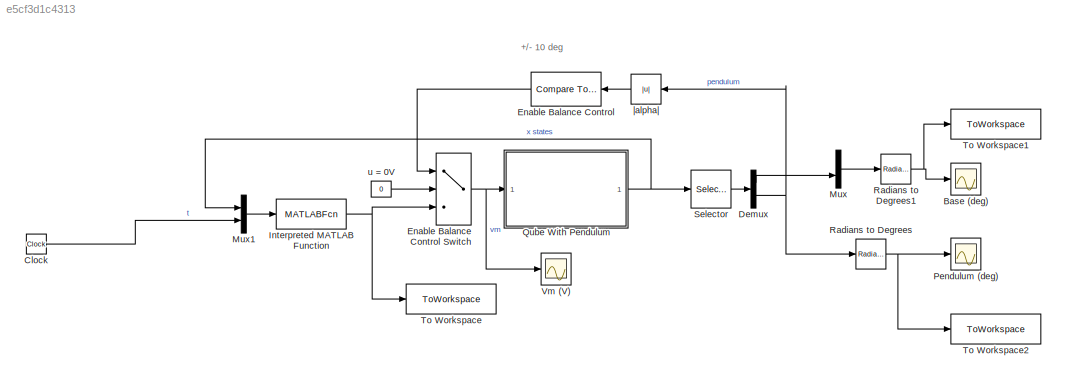
MODEL slx_e5cf3d1c4313
KIND model
CONFIG AbsTol = auto
CONFIG EnableMultiTasking = off
CONFIG FixedStep = 0.002
CONFIG MaxStep = auto
CONFIG MinStep = auto
CONFIG RelTol = 1e-3
CONFIG SampleTimeConstraint = Unconstrained
CONFIG SolverName = ode4
CONFIG StartTime = 0.0
CONFIG StopTime = inf
BLOCK [Scope] Base (deg)
  ActiveDisplayYMaximum = 168.75
  ActiveDisplayYMinimum = -168.75
  DataLoggingVariableName = ScopeData1
  Floating = off
  GraphicalSettings = {"Style":{"BackgroundColor":[0.12941176470588237,0.12941176470588237,0.12941176470588237],"AxesColor":[0.07058823529411765,0.07058823529411765,0.07058823529411765],"LabelsColor":[0.8509803921568627,0.8509803921568627,0.8509803921568627],"PreserveColors":false,"Visible":[true,true],"LineStyle":["-","-"],"LineWidth":[1.5,1.5],"BarWidth":[0.9,0.9],"LineColor":["auto","auto"],"LineFaceAlpha":[1,1],"Li...<+2100ch>
  MultipleDisplayCache = [{"MaxYLimMag":168.75,"MaxYLimReal":168.75,"MinYLimMag":0,"MinYLimReal":-168.75,"PlotAsMagnitudePhase":false,"ShowGrid":true,"ShowLegend":false,"Title":"%<SignalLabel>","YLabel":""}]
  NumInputPorts = 1
  ScopeFrameLocation = window
  WasSavedAsWebScope = on
  WindowPosition = [448.000000,304.000000,544.000000,292.000000,]
BLOCK [Clock] Clock
BLOCK [Demux] Demux
  Outputs = 2
BLOCK [Reference] Enable Balance Control  REF=simulink/Logic and Bit
Operations/Compare
To Constant
  SourceBlock = simulink/Logic and Bit\nOperations/Compare\nTo Constant
  SourceType = Compare To Constant
BLOCK [MultiPortSwitch] Enable Balance Control Switch
  DataPortOrder = Zero-based contiguous
  InputSameDT = off
  Inputs = 2
  SaturateOnIntegerOverflow = off
  zeroidx = on
BLOCK [MATLABFcn] Interpreted MATLAB Function
  MATLABFcn = mpc_controller
BLOCK [Mux] Mux
  DisplayOption = bar
  Inputs = 2
BLOCK [Mux] Mux1
  DisplayOption = bar
  Inputs = 2
BLOCK [Scope] Pendulum (deg)
  ActiveDisplayYMaximum = 294.12194355489
  ActiveDisplayYMinimum = -770.30363714423675
  DataLoggingVariableName = ScopeData2
  Floating = off
  GraphicalSettings = {"AxesScalingProperties":{"AlignXAxis":"Center","AlignYAxis":"Center","AutoScaleXAxisLimits":false,"AxesScaling":"Manual","AxesScalingNumUpdates":10,"ExpandOnly":true,"ScaleAxesLimitsAtStop":false,"XAxisDataRange":100,"YAxisDataRange":80},"Bilevel":{"AutoStateLevel":true,"Enabled":true,"HighStateLevel":2.3,"LowStateLevel":0,"LowerReferenceLevel":10,"MidReferenceLevel":50,"SettleSeek":0.02,"ShowAbe...<+2288ch>
  MultipleDisplayCache = [{"MaxYLimMag":202.82958984375,"MaxYLimReal":294.12194355489,"MinYLimMag":0,"MinYLimReal":-770.30363714423675,"PlotAsMagnitudePhase":false,"ShowGrid":true,"ShowLegend":false,"Title":"%<SignalLabel>","YLabel":""}]
  NumInputPorts = 1
  ScopeFrameLocation = window
  WasSavedAsWebScope = on
  WindowPosition = [530.000000,336.000000,547.000000,306.000000,]
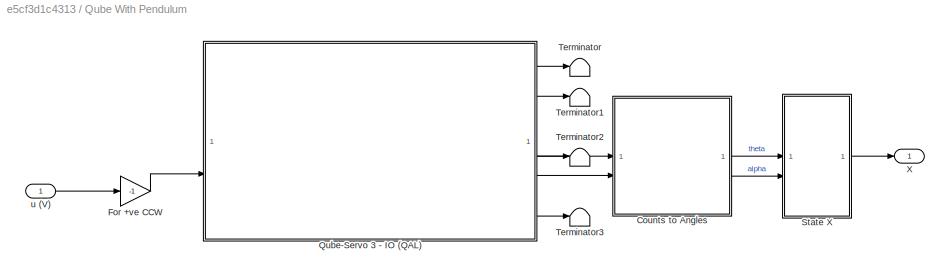
BLOCK [SubSystem] Qube With Pendulum
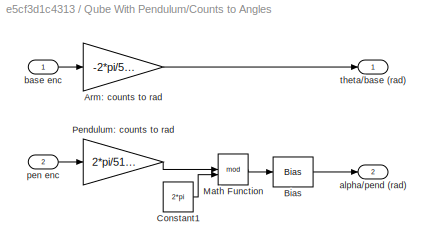
BLOCK [SubSystem] Qube With Pendulum/Counts to Angles
BLOCK [Gain] Qube With Pendulum/Counts to Angles/Arm: counts to rad
  Gain = -2*pi/512/4
BLOCK [Bias] Qube With Pendulum/Counts to Angles/Bias
  Bias = -pi
  SaturateOnIntegerOverflow = off
BLOCK [Constant] Qube With Pendulum/Counts to Angles/Constant1
  Value = 2*pi
BLOCK [Math] Qube With Pendulum/Counts to Angles/Math Function
  Operator = mod
  SignedPower = on
BLOCK [Gain] Qube With Pendulum/Counts to Angles/Pendulum: counts to rad
  Gain = 2*pi/512/4
BLOCK [Outport] Qube With Pendulum/Counts to Angles/alpha//pend (rad)
  Port = 2
  VectorParamsAs1DForOutWhenUnconnected = off
BLOCK [Inport] Qube With Pendulum/Counts to Angles/base enc
BLOCK [Inport] Qube With Pendulum/Counts to Angles/pen enc
  Port = 2
BLOCK [Outport] Qube With Pendulum/Counts to Angles/theta//base (rad)
  VectorParamsAs1DForOutWhenUnconnected = off
BLOCK [Gain] Qube With Pendulum/For +ve CCW
  Gain = -1
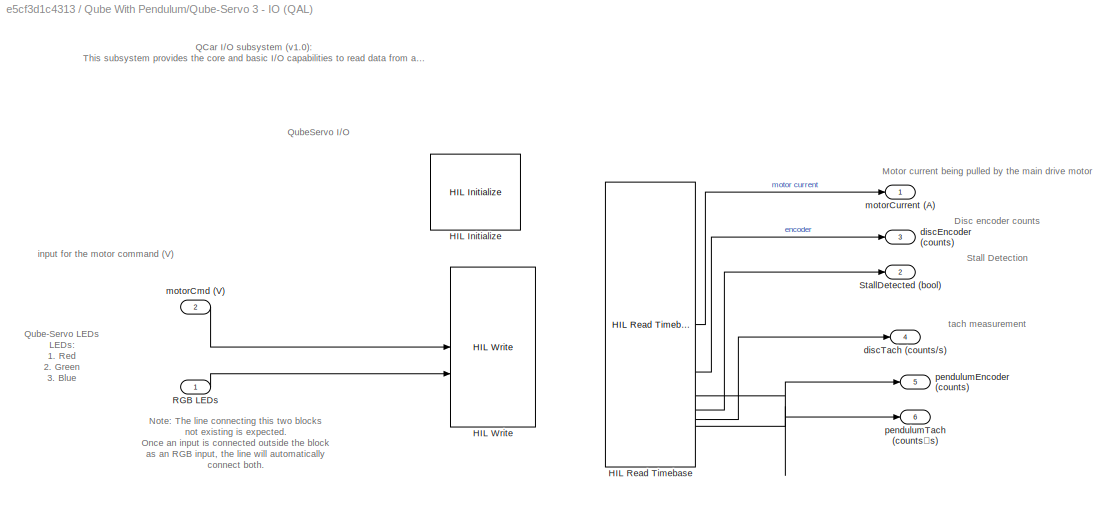
BLOCK [SubSystem] Qube With Pendulum/Qube-Servo 3 - IO (QAL)
  CopyFcn = set_param(gcbh,'LinkStatus','none');
  UserDataPersistent = on
BLOCK [Reference] Qube With Pendulum/Qube-Servo 3 - IO (QAL)/HIL Initialize  REF=quarc_library/Data Acquisition/Generic/Configuration/HIL Initialize
  AttributesFormatString = %<object_name> (%<board_type>-%<board_number>)
  SourceBlock = quarc_library/Data Acquisition/Generic/Configuration/HIL Initialize
  SourceProductName = QUARC Targets
  SourceType = HIL Initialize
  UserDataPersistent = on
BLOCK [Reference] Qube With Pendulum/Qube-Servo 3 - IO (QAL)/HIL Read Timebase  REF=quarc_library/Data Acquisition/Generic/Timebases/HIL Read
Timebase
  AttributesFormatString = (%<object_name>)
  SourceBlock = quarc_library/Data Acquisition/Generic/Timebases/HIL Read\nTimebase
  SourceProductName = QUARC Targets
  SourceType = HIL Read Timebase
  UserDataPersistent = on
BLOCK [Reference] Qube With Pendulum/Qube-Servo 3 - IO (QAL)/HIL Write  REF=quarc_library/Data Acquisition/Generic/Immediate I//O/HIL Write
  AttributesFormatString = (%<object_name>)
  SourceBlock = quarc_library/Data Acquisition/Generic/Immediate I//O/HIL Write
  SourceProductName = QUARC Targets
  SourceType = HIL Write
  UserDataPersistent = on
BLOCK [Inport] Qube With Pendulum/Qube-Servo 3 - IO (QAL)/RGB LEDs
BLOCK [Outport] Qube With Pendulum/Qube-Servo 3 - IO (QAL)/StallDetected (bool)
  Port = 2
  VectorParamsAs1DForOutWhenUnconnected = off
BLOCK [Outport] Qube With Pendulum/Qube-Servo 3 - IO (QAL)/discEncoder (counts)
  Port = 3
  VectorParamsAs1DForOutWhenUnconnected = off
BLOCK [Outport] Qube With Pendulum/Qube-Servo 3 - IO (QAL)/discTach (counts//s)
  Port = 4
  VectorParamsAs1DForOutWhenUnconnected = off
BLOCK [Inport] Qube With Pendulum/Qube-Servo 3 - IO (QAL)/motorCmd (V)
  Port = 2
BLOCK [Outport] Qube With Pendulum/Qube-Servo 3 - IO (QAL)/motorCurrent (A)
  VectorParamsAs1DForOutWhenUnconnected = off
BLOCK [Outport] Qube With Pendulum/Qube-Servo 3 - IO (QAL)/pendulumEncoder (counts)
  Port = 5
BLOCK [Outport] Qube With Pendulum/Qube-Servo 3 - IO (QAL)/pendulumTach (counts／s)
  Port = 6
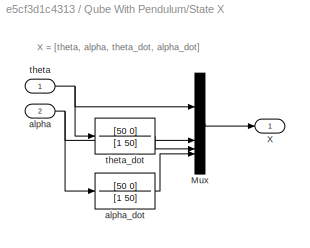
BLOCK [SubSystem] Qube With Pendulum/State X
BLOCK [Mux] Qube With Pendulum/State X/Mux
  DisplayOption = bar
BLOCK [Outport] Qube With Pendulum/State X/X
  VectorParamsAs1DForOutWhenUnconnected = off
BLOCK [Inport] Qube With Pendulum/State X/alpha
  Port = 2
BLOCK [TransferFcn] Qube With Pendulum/State X/alpha_dot
  Denominator = [1 50]
  Numerator = [50 0]
BLOCK [Inport] Qube With Pendulum/State X/theta
BLOCK [TransferFcn] Qube With Pendulum/State X/theta_dot
  Denominator = [1 50]
  Numerator = [50 0]
BLOCK [Terminator] Qube With Pendulum/Terminator
BLOCK [Terminator] Qube With Pendulum/Terminator1
BLOCK [Terminator] Qube With Pendulum/Terminator2
BLOCK [Terminator] Qube With Pendulum/Terminator3
BLOCK [Outport] Qube With Pendulum/X
BLOCK [Inport] Qube With Pendulum/u (V) 
BLOCK [Reference] Radians to Degrees  REF=simulink_extras/Transformations/Radians
to Degrees
  SourceBlock = simulink_extras/Transformations/Radians\nto Degrees
  SourceType = RadiansToDegrees
BLOCK [Reference] Radians to Degrees1  REF=simulink_extras/Transformations/Radians
to Degrees
  SourceBlock = simulink_extras/Transformations/Radians\nto Degrees
  SourceType = RadiansToDegrees
BLOCK [Selector] Selector
  IndexOptions = Index vector (dialog)
  Indices = [1 2]
  InputPortWidth = 4
  OutputSizes = 1
BLOCK [ToWorkspace] To Workspace
  FixptAsFi = on
  MaxDataPoints = inf
  SampleTime = -1
  Save2DSignal = 2-D array (concatenate along first dimension)
  VariableName = data_u
BLOCK [ToWorkspace] To Workspace1
  FixptAsFi = on
  MaxDataPoints = inf
  SampleTime = -1
  Save2DSignal = 2-D array (concatenate along first dimension)
  VariableName = data_theta
BLOCK [ToWorkspace] To Workspace2
  FixptAsFi = on
  MaxDataPoints = inf
  SampleTime = -1
  Save2DSignal = 2-D array (concatenate along first dimension)
  VariableName = data_alpha
BLOCK [Scope] Vm (V)
  ActiveDisplayYMaximum = 6.0422181524234819
  ActiveDisplayYMinimum = -4.536500472717818
  Floating = off
  GraphicalSettings = {"Style":{"BackgroundColor":[0.12941176470588237,0.12941176470588237,0.12941176470588237],"AxesColor":[0.07058823529411765,0.07058823529411765,0.07058823529411765],"LabelsColor":[0.8509803921568627,0.8509803921568627,0.8509803921568627],"PreserveColors":false,"Visible":[true],"LineStyle":["-"],"LineWidth":[1.5],"BarWidth":[0.9],"LineColor":["auto"],"LineFaceAlpha":[1],"LineEdgeAlpha":[1],"Marker":...<+1985ch>
  MultipleDisplayCache = [{"MaxYLimMag":6.0422181524234819,"MaxYLimReal":6.0422181524234819,"MinYLimMag":0,"MinYLimReal":-4.536500472717818,"PlotAsMagnitudePhase":false,"ShowGrid":true,"ShowLegend":false,"Title":"%<SignalLabel>","YLabel":""}]
  NumInputPorts = 1
  ScopeFrameLocation = window
  WasSavedAsWebScope = on
  WindowPosition = [400.000000,192.000000,640.000000,516.000000,]
BLOCK [Constant] u = 0V
  NameLocation = top
  Value = 0
BLOCK [Abs] |alpha|
  SaturateOnIntegerOverflow = off
ANNOTATION (root): +/- 10 deg
ANNOTATION Qube With Pendulum/Qube-Servo 3 - IO (QAL): QCar I/O subsystem (v1.0): This subsystem provides the core and basic I/O capabilities to read data from and write data to the Qube Servo. The HIL Initialize block configures the IO settings, and the HIL Write and Read blocks are used for the actual IO.
ANNOTATION Qube With Pendulum/Qube-Servo 3 - IO (QAL): Disc encoder counts
ANNOTATION Qube With Pendulum/Qube-Servo 3 - IO (QAL): Stall Detection
ANNOTATION Qube With Pendulum/Qube-Servo 3 - IO (QAL): tach measurement
ANNOTATION Qube With Pendulum/Qube-Servo 3 - IO (QAL): Motor current being pulled by the main drive motor
ANNOTATION Qube With Pendulum/Qube-Servo 3 - IO (QAL): Qube-Servo LEDs LEDs: 1. Red 2. Green 3. Blue
ANNOTATION Qube With Pendulum/Qube-Servo 3 - IO (QAL): input for the motor command (V)
ANNOTATION Qube With Pendulum/Qube-Servo 3 - IO (QAL): Note: The line connecting this two blocks not existing is expected. Once an input is connected outside the block as an RGB input, the line will automatically connect both.
ANNOTATION Qube With Pendulum/Qube-Servo 3 - IO (QAL): QubeServo I/O
ANNOTATION Qube With Pendulum/State X: X = [theta, alpha, theta_dot, alpha_dot]
LINE Clock:1 -> Mux1:2
LINE Demux:1 -> Mux:2
NET Demux:2 -> Radians to Degrees:1, |alpha|:1
NET Enable Balance Control Switch:1 -> Qube With Pendulum:1, Vm (V):1
LINE Enable Balance Control:1 -> Enable Balance Control Switch:1
NET Interpreted MATLAB Function:1 -> Enable Balance Control Switch:3, To Workspace:1
LINE Mux1:1 -> Interpreted MATLAB Function:1
LINE Mux:1 -> Radians to Degrees1:1
LINE Qube With Pendulum/Counts to Angles/Arm: counts to rad:1 -> Qube With Pendulum/Counts to Angles/theta//base (rad):1
LINE Qube With Pendulum/Counts to Angles/Bias:1 -> Qube With Pendulum/Counts to Angles/alpha//pend (rad):1
LINE Qube With Pendulum/Counts to Angles/Constant1:1 -> Qube With Pendulum/Counts to Angles/Math Function:2
LINE Qube With Pendulum/Counts to Angles/Math Function:1 -> Qube With Pendulum/Counts to Angles/Bias:1
LINE Qube With Pendulum/Counts to Angles/Pendulum: counts to rad:1 -> Qube With Pendulum/Counts to Angles/Math Function:1
LINE Qube With Pendulum/Counts to Angles/base enc:1 -> Qube With Pendulum/Counts to Angles/Arm: counts to rad:1
LINE Qube With Pendulum/Counts to Angles/pen enc:1 -> Qube With Pendulum/Counts to Angles/Pendulum: counts to rad:1
LINE Qube With Pendulum/Counts to Angles:1 -> Qube With Pendulum/State X:1
LINE Qube With Pendulum/Counts to Angles:2 -> Qube With Pendulum/State X:2
LINE Qube With Pendulum/For +ve CCW:1 -> Qube With Pendulum/Qube-Servo 3 - IO (QAL):2
LINE Qube With Pendulum/Qube-Servo 3 - IO (QAL):1 -> Qube With Pendulum/Terminator:1
LINE Qube With Pendulum/Qube-Servo 3 - IO (QAL):2 -> Qube With Pendulum/Terminator1:1
LINE Qube With Pendulum/Qube-Servo 3 - IO (QAL):3 -> Qube With Pendulum/Counts to Angles:1
LINE Qube With Pendulum/Qube-Servo 3 - IO (QAL):4 -> Qube With Pendulum/Terminator2:1
LINE Qube With Pendulum/Qube-Servo 3 - IO (QAL):5 -> Qube With Pendulum/Counts to Angles:2
LINE Qube With Pendulum/Qube-Servo 3 - IO (QAL):6 -> Qube With Pendulum/Terminator3:1
LINE Qube With Pendulum/State X/Mux:1 -> Qube With Pendulum/State X/X:1
NET Qube With Pendulum/State X/alpha:1 -> Qube With Pendulum/State X/Mux:2, Qube With Pendulum/State X/alpha_dot:1
LINE Qube With Pendulum/State X/alpha_dot:1 -> Qube With Pendulum/State X/Mux:4
NET Qube With Pendulum/State X/theta:1 -> Qube With Pendulum/State X/Mux:1, Qube With Pendulum/State X/theta_dot:1
LINE Qube With Pendulum/State X/theta_dot:1 -> Qube With Pendulum/State X/Mux:3
LINE Qube With Pendulum/State X:1 -> Qube With Pendulum/X:1
LINE Qube With Pendulum/u (V) :1 -> Qube With Pendulum/For +ve CCW:1
NET Qube With Pendulum:1 -> Mux1:1, Selector:1
NET Radians to Degrees1:1 -> Base (deg):1, To Workspace1:1
NET Radians to Degrees:1 -> Pendulum (deg):1, To Workspace2:1
LINE Selector:1 -> Demux:1
LINE u = 0V:1 -> Enable Balance Control Switch:2
LINE |alpha|:1 -> Enable Balance Control:1
note: NET lines group one-source signal fan-out (src -> all destinations, sorted); 1:1 wires keep LINE
